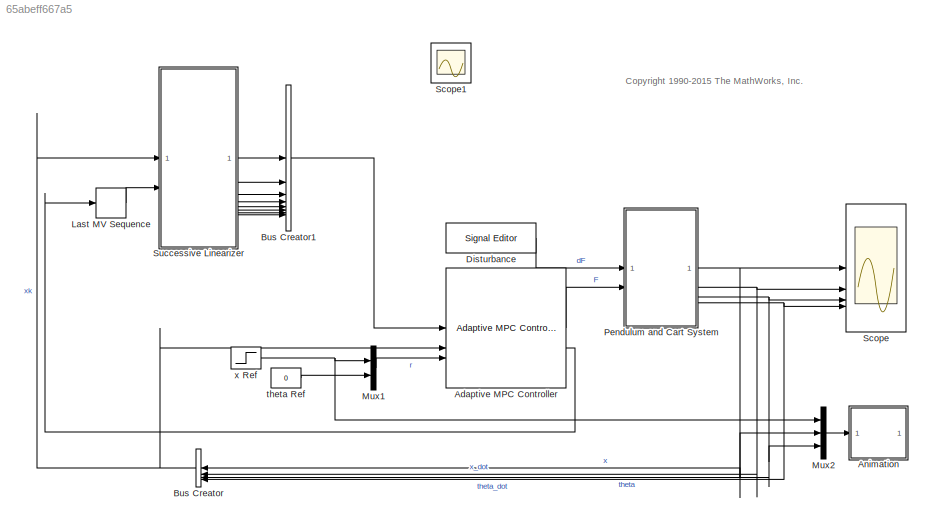
MODEL slx_65abeff667a5
KIND model
CONFIG AbsTol = auto
CONFIG EnableMultiTasking = on
CONFIG FixedStep = auto
CONFIG MaxStep = 1e-3
CONFIG MinStep = auto
CONFIG RelTol = 1e-3
CONFIG SampleTimeConstraint = Unconstrained
CONFIG SolverName = VariableStepAuto
CONFIG StartTime = 0.0
CONFIG StopTime = 20
BLOCK [Reference] Adaptive MPC Controller  REF=mpclib/Adaptive MPC Controller  (lib defined in mdl_ae329e0e0455)
  SCDEnableBlockLinearizationSpecification = on
  SourceBlock = mpclib/Adaptive MPC Controller
  SourceType = Adaptive MPC
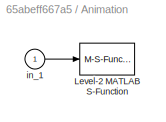
BLOCK [SubSystem] Animation
BLOCK [M-S-Function] Animation/Level-2 MATLAB S-Function
  FunctionName = pendcartAnimation
  Parameters = RefBlock
BLOCK [Inport] Animation/in_1
BLOCK [BusCreator] Bus Creator
  DisplayOption = bar
  InheritFromInputs = on
  Inputs = 4
  NameLocation = top
BLOCK [BusCreator] Bus Creator1
  DisplayOption = bar
  InheritFromInputs = on
  Inputs = 8
BLOCK [Reference] Disturbance  REF=SignalEditorBlockLib/Signal Editor
  LibrarySourceBlock = simulink/Sources/Signal Editor
  SourceBlock = SignalEditorBlockLib/Signal Editor
  SourceType = SignalEditor
  UserDataPersistent = on
BLOCK [Memory] Last MV Sequence
  InheritSampleTime = on
  InitialCondition = u0
BLOCK [Mux] Mux1
  DisplayOption = bar
  Inputs = 2
BLOCK [Mux] Mux2
  DisplayOption = bar
  Inputs = 3
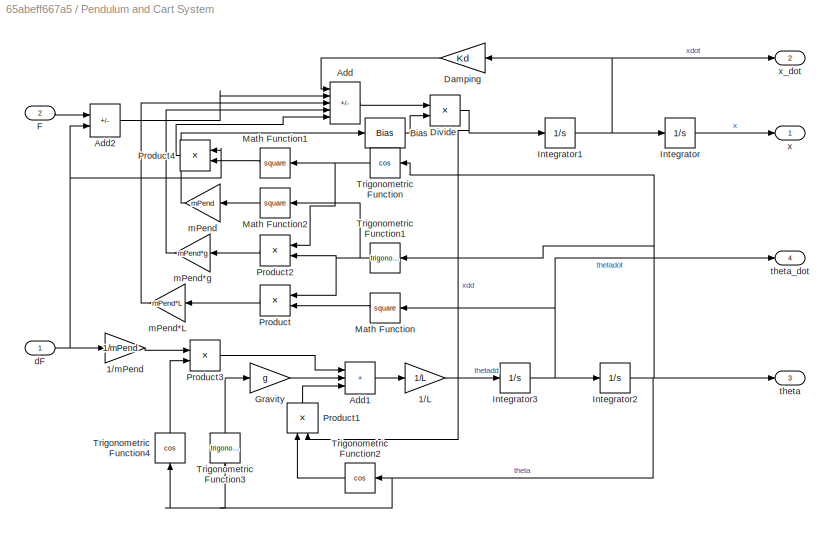
BLOCK [SubSystem] Pendulum and Cart System
BLOCK [Gain] Pendulum and Cart System/1//L
  Gain = 1/L
BLOCK [Gain] Pendulum and Cart System/1//mPend
  Gain = 1/mPend
  NameLocation = top
BLOCK [Sum] Pendulum and Cart System/Add
  IconShape = rectangular
  Inputs = -+-++
BLOCK [Sum] Pendulum and Cart System/Add1
  IconShape = rectangular
  Inputs = +++
BLOCK [Sum] Pendulum and Cart System/Add2
  IconShape = rectangular
  Inputs = +-
BLOCK [Bias] Pendulum and Cart System/Bias
  Bias = mCart
  SaturateOnIntegerOverflow = off
BLOCK [Gain] Pendulum and Cart System/Damping
  Gain = Kd
  NameLocation = top
BLOCK [Product] Pendulum and Cart System/Divide
  Inputs = */
BLOCK [Inport] Pendulum and Cart System/F
  Port = 2
BLOCK [Gain] Pendulum and Cart System/Gravity
  Gain = g
BLOCK [Integrator] Pendulum and Cart System/Integrator
  ContinuousStateAttributes = 'x'
BLOCK [Integrator] Pendulum and Cart System/Integrator1
  ContinuousStateAttributes = 'xdot'
BLOCK [Integrator] Pendulum and Cart System/Integrator2
  ContinuousStateAttributes = 'theta'
BLOCK [Integrator] Pendulum and Cart System/Integrator3
  ContinuousStateAttributes = 'thetadot'
BLOCK [Math] Pendulum and Cart System/Math Function
  Operator = square
  SignedPower = on
BLOCK [Math] Pendulum and Cart System/Math Function1
  Operator = square
  SignedPower = on
BLOCK [Math] Pendulum and Cart System/Math Function2
  Operator = square
  SignedPower = on
BLOCK [Product] Pendulum and Cart System/Product
  NameLocation = top
BLOCK [Product] Pendulum and Cart System/Product1
  NameLocation = right
BLOCK [Product] Pendulum and Cart System/Product2
  NameLocation = top
BLOCK [Product] Pendulum and Cart System/Product3
BLOCK [Product] Pendulum and Cart System/Product4
  NameLocation = top
BLOCK [Trigonometry] Pendulum and Cart System/Trigonometric Function
  NameLocation = top
  Operator = cos
BLOCK [Trigonometry] Pendulum and Cart System/Trigonometric Function1
  NameLocation = top
BLOCK [Trigonometry] Pendulum and Cart System/Trigonometric Function2
  NameLocation = top
  Operator = cos
BLOCK [Trigonometry] Pendulum and Cart System/Trigonometric Function3
  NameLocation = right
BLOCK [Trigonometry] Pendulum and Cart System/Trigonometric Function4
  NameLocation = right
  Operator = cos
BLOCK [Inport] Pendulum and Cart System/dF
BLOCK [Gain] Pendulum and Cart System/mPend
  Gain = mPend
BLOCK [Gain] Pendulum and Cart System/mPend*L
  Gain = mPend*L
BLOCK [Gain] Pendulum and Cart System/mPend*g
  Gain = mPend*g
BLOCK [Outport] Pendulum and Cart System/theta
  Port = 3
  VectorParamsAs1DForOutWhenUnconnected = off
BLOCK [Outport] Pendulum and Cart System/theta_dot
  Port = 4
  VectorParamsAs1DForOutWhenUnconnected = off
BLOCK [Outport] Pendulum and Cart System/x
  VectorParamsAs1DForOutWhenUnconnected = off
BLOCK [Outport] Pendulum and Cart System/x_dot
  Port = 2
  VectorParamsAs1DForOutWhenUnconnected = off
BLOCK [Scope] Scope
  Floating = off
  NameLocation = top
  NumInputPorts = 4
  ScopeSpecificationString = Simulink.scopes.TimeScopeBlockCfg('CurrentConfiguration', extmgr.ConfigurationSet(extmgr.Configuration('Core','General UI',true),extmgr.Configuration('Core','Source UI',true),extmgr.Configuration('Sources','WiredSimulink',true,'DataLoggingSaveFormat','StructureWithTime','DataLoggingDecimation','1','DataLoggingDecimateData',true),extmgr.Configuration('Visuals','Time Domain',true,'SerializedDisplays...<+3604ch>
BLOCK [Scope] Scope1
  Floating = off
  IOType = viewer
  NumInputPorts = 1
  ScopeSpecificationString = Simulink.scopes.TimeScopeBlockCfg('CurrentConfiguration', extmgr.ConfigurationSet(extmgr.Configuration('Core','General UI',true),extmgr.Configuration('Core','Source UI',true),extmgr.Configuration('Sources','WiredSimulink',true,'DataLoggingMaxPoints','7500','DataLoggingLimitDataPoints',true,'DataLoggingSaveFormat','Array','DataLoggingDecimation','1','DataLoggingDecimateData',true),extmgr.Configurat...<+1708ch>
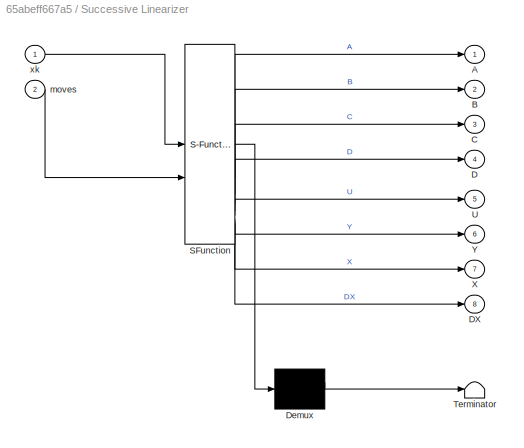
BLOCK [SubSystem] Successive Linearizer
  ErrorFcn = Stateflow.Translate.translate
  PermitHierarchicalResolution = ExplicitOnly
  SFBlockType = MATLAB Function
  TreatAsAtomicUnit = on
BLOCK [Demux] Successive Linearizer/ Demux 
  Outputs = 1
BLOCK [S-Function] Successive Linearizer/ SFunction 
  EnableBusSupport = off
  FunctionName = sf_sfun
  Parameters = PredictionHorizon,Ts
  PortCounts = [2 9]
  SFcnIsStateOwnerBlock = off
  SFunctionDeploymentMode = off
  Tag = Stateflow S-Function 2
BLOCK [Terminator] Successive Linearizer/ Terminator 
BLOCK [Outport] Successive Linearizer/A
  VectorParamsAs1DForOutWhenUnconnected = off
BLOCK [Outport] Successive Linearizer/B
  Port = 2
  VectorParamsAs1DForOutWhenUnconnected = off
BLOCK [Outport] Successive Linearizer/C
  Port = 3
  VectorParamsAs1DForOutWhenUnconnected = off
BLOCK [Outport] Successive Linearizer/D
  Port = 4
  VectorParamsAs1DForOutWhenUnconnected = off
BLOCK [Outport] Successive Linearizer/DX
  Port = 8
  VectorParamsAs1DForOutWhenUnconnected = off
BLOCK [Outport] Successive Linearizer/U
  Port = 5
  VectorParamsAs1DForOutWhenUnconnected = off
BLOCK [Outport] Successive Linearizer/X
  Port = 7
  VectorParamsAs1DForOutWhenUnconnected = off
BLOCK [Outport] Successive Linearizer/Y
  Port = 6
  VectorParamsAs1DForOutWhenUnconnected = off
BLOCK [Inport] Successive Linearizer/moves
  Port = 2
BLOCK [Inport] Successive Linearizer/xk
BLOCK [Constant] theta Ref
  Value = 0
BLOCK [Step] x Ref
  After = 20
  SampleTime = Ts
ANNOTATION (root): <copyright redacted>
LINE Adaptive MPC Controller:1 -> Pendulum and Cart System:2
LINE Adaptive MPC Controller:2 -> Last MV Sequence:1
LINE Animation/in_1:1 -> Animation/Level-2 MATLAB S-Function:1
LINE Bus Creator1:1 -> Adaptive MPC Controller:1
NET Bus Creator:1 -> Adaptive MPC Controller:2, Successive Linearizer:1
LINE Disturbance:1 -> Pendulum and Cart System:1
LINE Last MV Sequence:1 -> Successive Linearizer:2
LINE Mux1:1 -> Adaptive MPC Controller:3
LINE Mux2:1 -> Animation:1
LINE Pendulum and Cart System/1//L:1 -> Pendulum and Cart System/Integrator3:1
LINE Pendulum and Cart System/1//mPend:1 -> Pendulum and Cart System/Product3:1
LINE Pendulum and Cart System/Add1:1 -> Pendulum and Cart System/1//L:1
LINE Pendulum and Cart System/Add2:1 -> Pendulum and Cart System/Add:2
LINE Pendulum and Cart System/Add:1 -> Pendulum and Cart System/Divide:1
LINE Pendulum and Cart System/Bias:1 -> Pendulum and Cart System/Divide:2
LINE Pendulum and Cart System/Damping:1 -> Pendulum and Cart System/Add:1
NET Pendulum and Cart System/Divide:1 -> Pendulum and Cart System/Integrator1:1, Pendulum and Cart System/Product1:2
LINE Pendulum and Cart System/F:1 -> Pendulum and Cart System/Add2:1
LINE Pendulum and Cart System/Gravity:1 -> Pendulum and Cart System/Add1:2
NET Pendulum and Cart System/Integrator1:1 -> Pendulum and Cart System/Damping:1, Pendulum and Cart System/Integrator:1, Pendulum and Cart System/x_dot:1
NET Pendulum and Cart System/Integrator2:1 -> Pendulum and Cart System/Trigonometric Function1:1, Pendulum and Cart System/Trigonometric Function2:1, Pendulum and Cart System/Trigonometric Function3:1, Pendulum and Cart System/Trigonometric Function4:1, Pendulum and Cart System/Trigonometric Function:1, Pendulum and Cart System/theta:1
NET Pendulum and Cart System/Integrator3:1 -> Pendulum and Cart System/Integrator2:1, Pendulum and Cart System/Math Function:1, Pendulum and Cart System/theta_dot:1
LINE Pendulum and Cart System/Integrator:1 -> Pendulum and Cart System/x:1
LINE Pendulum and Cart System/Math Function1:1 -> Pendulum and Cart System/Product4:2
LINE Pendulum and Cart System/Math Function2:1 -> Pendulum and Cart System/mPend:1
LINE Pendulum and Cart System/Math Function:1 -> Pendulum and Cart System/Product:2
LINE Pendulum and Cart System/Product1:1 -> Pendulum and Cart System/Add1:3
LINE Pendulum and Cart System/Product2:1 -> Pendulum and Cart System/mPend*g:1
LINE Pendulum and Cart System/Product3:1 -> Pendulum and Cart System/Add1:1
LINE Pendulum and Cart System/Product4:1 -> Pendulum and Cart System/Add:5
LINE Pendulum and Cart System/Product:1 -> Pendulum and Cart System/mPend*L:1
NET Pendulum and Cart System/Trigonometric Function1:1 -> Pendulum and Cart System/Math Function2:1, Pendulum and Cart System/Product2:2, Pendulum and Cart System/Product:1
LINE Pendulum and Cart System/Trigonometric Function2:1 -> Pendulum and Cart System/Product1:1
LINE Pendulum and Cart System/Trigonometric Function3:1 -> Pendulum and Cart System/Gravity:1
LINE Pendulum and Cart System/Trigonometric Function4:1 -> Pendulum and Cart System/Product3:2
NET Pendulum and Cart System/Trigonometric Function:1 -> Pendulum and Cart System/Math Function1:1, Pendulum and Cart System/Product2:1
NET Pendulum and Cart System/dF:1 -> Pendulum and Cart System/1//mPend:1, Pendulum and Cart System/Add2:2, Pendulum and Cart System/Product4:1
LINE Pendulum and Cart System/mPend*L:1 -> Pendulum and Cart System/Add:3
LINE Pendulum and Cart System/mPend*g:1 -> Pendulum and Cart System/Add:4
LINE Pendulum and Cart System/mPend:1 -> Pendulum and Cart System/Bias:1
NET Pendulum and Cart System:1 -> Bus Creator:1, Mux2:2, Scope:1
NET Pendulum and Cart System:2 -> Bus Creator:2, Scope:2
NET Pendulum and Cart System:3 -> Bus Creator:3, Mux2:3, Scope:3
NET Pendulum and Cart System:4 -> Bus Creator:4, Scope:4
LINE Successive Linearizer:1 -> Bus Creator1:1
LINE Successive Linearizer:2 -> Bus Creator1:2
LINE Successive Linearizer:3 -> Bus Creator1:3
LINE Successive Linearizer:4 -> Bus Creator1:4
LINE Successive Linearizer:5 -> Bus Creator1:5
LINE Successive Linearizer:6 -> Bus Creator1:6
LINE Successive Linearizer:7 -> Bus Creator1:7
LINE Successive Linearizer:8 -> Bus Creator1:8
LINE theta Ref:1 -> Mux1:2
NET x Ref:1 -> Mux1:1, Mux2:1
note: NET lines group one-source signal fan-out (src -> all destinations, sorted); 1:1 wires keep LINE
CHART Successive Linearizer states=1 transitions=1
  STATE_LABEL 'eML_blk_kernel()'
  STATE_LABEL 'SCRIPT:\nfunction [A,B,C,D,U,Y,X,DX] = fcn(xk,moves,Ts,PredictionHorizon)\n% LTV MPC requires p+1 linearizations from k to k+p\nSteps = PredictionHorizon + 1;\n% Initialize outputs\nA = zeros(4,4,Steps);\nB = zeros(4,1,Steps);\nC = zeros(2,4,Steps);\nD = zeros(2,1,Steps);\nU = zeros(1,1,Steps);\nY = zeros(2,1,Steps);\nX = zeros(4,1,Steps);\nDX = zeros(4,1,Steps);\n% Obtain time varying linear models via succes...<+1290ch>'
CHART  states=0 transitions=0
